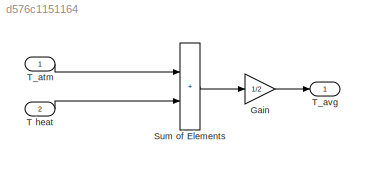
MODEL slx_d576c1151164
KIND model
CONFIG AbsTol = auto
CONFIG EnableMultiTasking = off
CONFIG FixedStep = auto
CONFIG MaxStep = auto
CONFIG MinStep = auto
CONFIG RelTol = 1e-3
CONFIG SampleTimeConstraint = Unconstrained
CONFIG SolverName = VariableStepAuto
CONFIG StartTime = 0.0
CONFIG StopTime = 10.0
BLOCK [Gain] Gain
  Gain = 1/2
  NameLocation = top
BLOCK [Sum] Sum of Elements
  IconShape = rectangular
  NameLocation = top
BLOCK [Inport] T heat
  Port = 2
BLOCK [Inport] T_atm
BLOCK [Outport] T_avg
  NameLocation = top
  VectorParamsAs1DForOutWhenUnconnected = off
LINE Gain:1 -> T_avg:1
LINE Sum of Elements:1 -> Gain:1
LINE T heat:1 -> Sum of Elements:2
LINE T_atm:1 -> Sum of Elements:1
